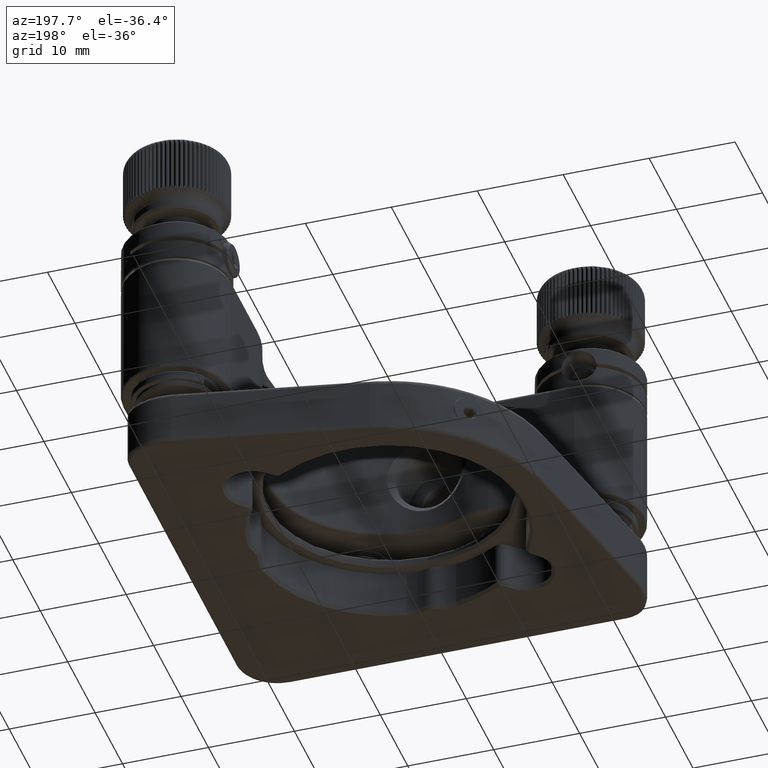
[diagram: clean part render]
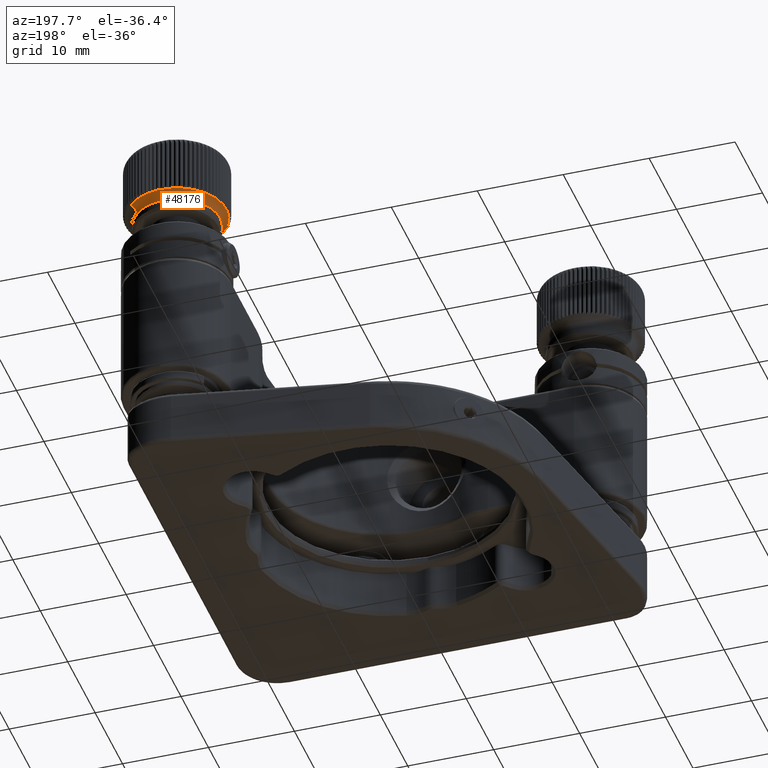
[diagram: same view with one face highlighted and labeled with its STEP entity id]
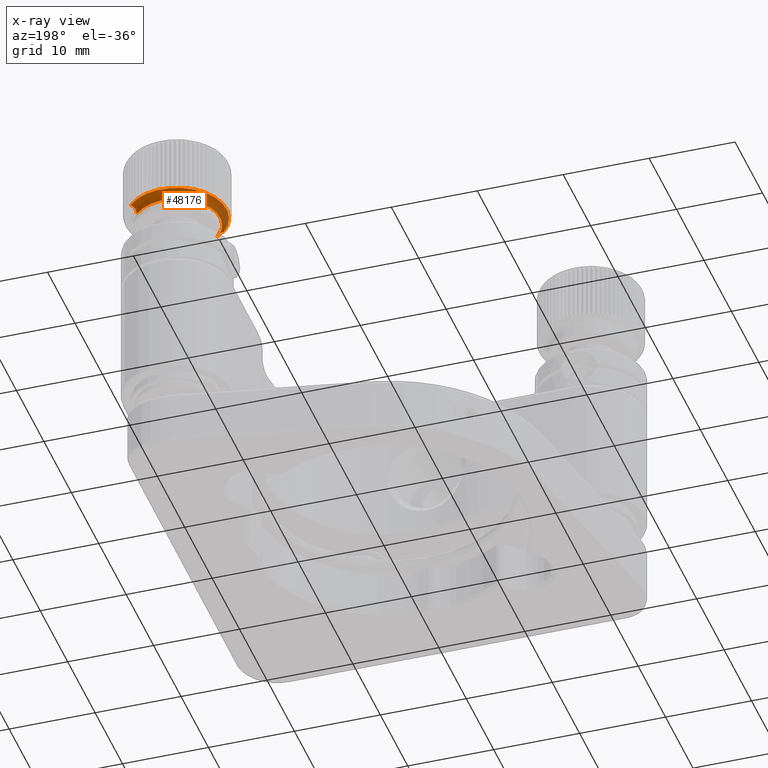
[diagram: x-ray of the same camera — body ghosted, the highlighted face saturated]
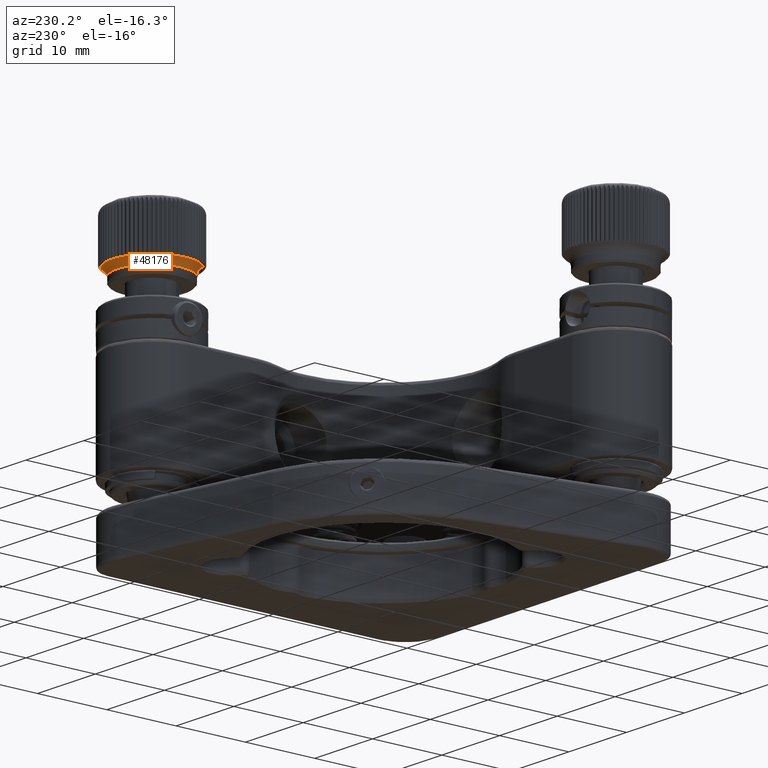
[diagram: same view with one face highlighted and labeled with its STEP entity id]
A machine part, auxiliary view. The second image highlights one B-rep face of the part: STEP entity #48176.
The next image is the same camera in x-ray: the body ghosted, the highlighted face saturated — about 0% of this face is hidden behind the body in this view.
A second angle (auxiliary view) of the same face is appended — the face is thin or edge-on in the first view.
In plain terms, the highlighted face is a freeform B-spline surface patch.
Its self-contained STEP definition (entity closure, byte-faithful):
#591 = DIRECTION ( 'NONE',  ( 0.000000000000000000, 0.000000000000000000, 1.000000000000000000 ) ) ;
#727 = VERTEX_POINT ( 'NONE', #50622 ) ;
#1691 = CIRCLE ( 'NONE', #9095, 5.749999999827243968 ) ;
#2943 = CARTESIAN_POINT ( 'NONE',  ( 14.66302551495704165, 14.76666624554342988, 16.80807811498303295 ) ) ;
#4085 = CARTESIAN_POINT ( 'NONE',  ( 14.29717035400000569, 30.71457083600001070, 17.32194724099999306 ) ) ;
#5210 = CARTESIAN_POINT ( 'NONE',  ( 7.078251580000006982, 22.15676742000000843, 17.23653398999998743 ) ) ;
#6877 = CIRCLE ( 'NONE', #12429, 4.999999999779673132 ) ;
#7288 = CARTESIAN_POINT ( 'NONE',  ( 14.12497934304343161, 14.24416618194636186, 17.30182608298547819 ) ) ;
#9095 = AXIS2_PLACEMENT_3D ( 'NONE', #34134, #56449, #26302 ) ;
#10628 =( BOUNDED_CURVE ( )  B_SPLINE_CURVE ( 3, ( #7288, #42647, #2943, #20654 ),
 .UNSPECIFIED., .F., .F. ) 
 B_SPLINE_CURVE_WITH_KNOTS ( ( 4, 4 ),
 ( 0.07128696397891397252, 0.9287130359869673057 ),
 .UNSPECIFIED. ) 
 CURVE ( )  GEOMETRIC_REPRESENTATION_ITEM ( )  RATIONAL_B_SPLINE_CURVE ( ( 0.9636513467640375197, 0.8291059700123046827, 0.8291059700069508542, 0.9636513467479760342 ) ) 
 REPRESENTATION_ITEM ( '' )  );
#12429 = AXIS2_PLACEMENT_3D ( 'NONE', #40306, #591, #33277 ) ;
#13128 = CARTESIAN_POINT ( 'NONE',  ( 21.83697448492957349, 21.73333375402863865, 16.33358024700000044 ) ) ;
#13358 = CARTESIAN_POINT ( 'NONE',  ( 5.906645544000007853, 22.56647878499999393, 17.32194724099999306 ) ) ;
#15921 = EDGE_CURVE ( 'NONE', #28000, #727, #1691, .T. ) ;
#18078 = EDGE_LOOP ( 'NONE', ( #51219, #49875, #42011, #24273 ) ) ;
#18271 = CARTESIAN_POINT ( 'NONE',  ( 7.685813156000003588, 21.94430275700000266, 16.23374683000000473 ) ) ;
#18472 = EDGE_CURVE ( 'NONE', #727, #44624, #10628, .T. ) ;
#20654 = CARTESIAN_POINT ( 'NONE',  ( 14.66302551614208660, 14.76666624486781032, 16.33358024699534283 ) ) ;
#22339 = CARTESIAN_POINT ( 'NONE',  ( 22.04705665199999487, 21.93734588399999907, 17.23653398999999453 ) ) ;
#22911 = CARTESIAN_POINT ( 'NONE',  ( 22.44526240500000114, 22.32404602600000132, 17.32194724100000371 ) ) ;
#24273 = ORIENTED_EDGE ( 'NONE', *, *, #15921, .F. ) ;
#26302 = DIRECTION ( 'NONE',  ( 1.000000000000000000, 0.000000000000000000, 0.000000000000000000 ) ) ;
#26684 = FACE_OUTER_BOUND ( 'NONE', #18078, .T. ) ;
#26967 = CARTESIAN_POINT ( 'NONE',  ( 22.37502065766875603, 22.25583381732026211, 17.30182608298547819 ) ) ;
#28000 = VERTEX_POINT ( 'NONE', #26967 ) ;
#31310 = CARTESIAN_POINT ( 'NONE',  ( 14.86693009900000639, 28.91793112899998519, 16.23374683000000473 ) ) ;
#31594 = CARTESIAN_POINT ( 'NONE',  ( 14.05473759500000064, 14.17595397400000046, 17.32194724100000371 ) ) ;
#31884 = CARTESIAN_POINT ( 'NONE',  ( 14.67236488400000383, 29.53145918800001724, 17.23653398999998743 ) ) ;
#32868 = CARTESIAN_POINT ( 'NONE',  ( 21.83697448492956994, 21.73333375402863865, 16.33358024700000044 ) ) ;
#33277 = DIRECTION ( 'NONE',  ( 0.7173948970316132989, 0.6966667508306974010, 0.000000000000000000 ) ) ;
#34134 = CARTESIAN_POINT ( 'NONE',  ( 18.25000000000000355, 18.25000000000001776, 17.30182608297094760 ) ) ;
#35090 = CARTESIAN_POINT ( 'NONE',  ( 7.804155263999996706, 21.90291844700001178, 16.79254620600000081 ) ) ;
#37997 =( BOUNDED_CURVE ( )  B_SPLINE_CURVE ( 3, ( #13128, #49310, #52822, #53667 ),
 .UNSPECIFIED., .F., .F. ) 
 B_SPLINE_CURVE_WITH_KNOTS ( ( 4, 4 ),
 ( 0.07128696402609292770, 0.9287130360210901214 ),
 .UNSPECIFIED. ) 
 CURVE ( )  GEOMETRIC_REPRESENTATION_ITEM ( )  RATIONAL_B_SPLINE_CURVE ( ( 0.9636513467418279522, 0.8291059700069501881, 0.8291059700143541544, 0.9636513467640395181 ) ) 
 REPRESENTATION_ITEM ( '' )  );
#39714 = CARTESIAN_POINT ( 'NONE',  ( 21.84055847100000136, 21.73681418600000015, 16.23374683000000473 ) ) ;
#40306 = CARTESIAN_POINT ( 'NONE',  ( 18.24999999999998934, 18.25000000000000355, 16.33358024700000044 ) ) ;
#40558 = CARTESIAN_POINT ( 'NONE',  ( 21.80033632599999649, 21.69775420500000962, 16.79254620600000791 ) ) ;
#41710 =( BOUNDED_SURFACE ( )  B_SPLINE_SURFACE ( 3, 3, ( 
 ( #39714, #31310, #18271, #57121 ),
 ( #40558, #48970, #35090, #44899 ),
 ( #22339, #31884, #5210, #53607 ),
 ( #22911, #4085, #13358, #31594 ) ),
 .UNSPECIFIED., .F., .F., .F. ) 
 B_SPLINE_SURFACE_WITH_KNOTS ( ( 4, 4 ),
 ( 4, 4 ),
 ( 0.000000000000000000, 1.000000000000000000 ),
 ( 0.000000000000000000, 1.000000000000000000 ),
 .UNSPECIFIED. ) 
 GEOMETRIC_REPRESENTATION_ITEM ( )  RATIONAL_B_SPLINE_SURFACE ( (
 ( 1.000000000000000000, 0.3333333333333329818, 0.3333333333333329818, 1.000000000000000000),
 ( 0.8169897522616300645, 0.2723299174205429662, 0.2723299174205429662, 0.8169897522616300645),
 ( 0.8169897522616300645, 0.2723299174205429662, 0.2723299174205429662, 0.8169897522616300645),
 ( 1.000000000000000000, 0.3333333333333329818, 0.3333333333333329818, 1.000000000000000000) ) ) 
 REPRESENTATION_ITEM ( '' )  SURFACE ( )  );
#42011 = ORIENTED_EDGE ( 'NONE', *, *, #18472, .F. ) ;
#42647 = CARTESIAN_POINT ( 'NONE',  ( 14.45457249943371458, 14.56423619528228741, 17.18320161599802987 ) ) ;
#44624 = VERTEX_POINT ( 'NONE', #51759 ) ;
#44899 = CARTESIAN_POINT ( 'NONE',  ( 14.69966367399999640, 14.80224579499999216, 16.79254620600000791 ) ) ;
#46388 = EDGE_CURVE ( 'NONE', #48655, #28000, #37997, .T. ) ;
#48176 = ADVANCED_FACE ( 'NONE', ( #26684 ), #41710, .F. ) ;
#48655 = VERTEX_POINT ( 'NONE', #32868 ) ;
#48970 = CARTESIAN_POINT ( 'NONE',  ( 14.90482791600000745, 28.79842685700001326, 16.79254620600000081 ) ) ;
#49310 = CARTESIAN_POINT ( 'NONE',  ( 21.83697448504931060, 21.73333375446273763, 16.80807811499446558 ) ) ;
#49875 = ORIENTED_EDGE ( 'NONE', *, *, #55321, .T. ) ;
#50622 = CARTESIAN_POINT ( 'NONE',  ( 14.12497934304343161, 14.24416618194636186, 17.30182608298547819 ) ) ;
#51219 = ORIENTED_EDGE ( 'NONE', *, *, #46388, .F. ) ;
#51759 = CARTESIAN_POINT ( 'NONE',  ( 14.66302551614208660, 14.76666624486781032, 16.33358024699534283 ) ) ;
#52822 = CARTESIAN_POINT ( 'NONE',  ( 22.04542750057212075, 21.93576380472337561, 17.18320161600012952 ) ) ;
#53607 = CARTESIAN_POINT ( 'NONE',  ( 14.45294334800000691, 14.56265411599999204, 17.23653398999999453 ) ) ;
#53667 = CARTESIAN_POINT ( 'NONE',  ( 22.37502065766875603, 22.25583381732026211, 17.30182608298547819 ) ) ;
#55321 = EDGE_CURVE ( 'NONE', #48655, #44624, #6877, .T. ) ;
#56449 = DIRECTION ( 'NONE',  ( 0.000000000000000000, 0.000000000000000000, 1.000000000000000000 ) ) ;
#57121 = CARTESIAN_POINT ( 'NONE',  ( 14.65944152900000041, 14.76318581400000163, 16.23374683000000473 ) ) ;